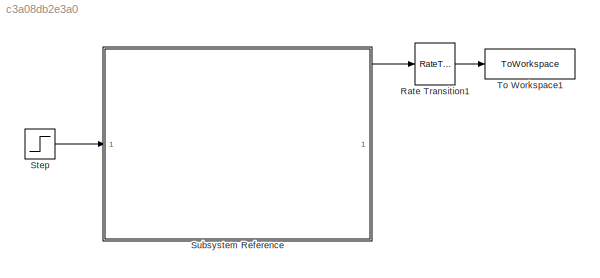
MODEL slx_c3a08db2e3a0
KIND model
CONFIG AbsTol = auto
CONFIG EnableMultiTasking = on
CONFIG FixedStep = 0.001
CONFIG MaxStep = auto
CONFIG MinStep = auto
CONFIG RelTol = 1e-3
CONFIG SampleTimeConstraint = Unconstrained
CONFIG SolverName = FixedStepAuto
CONFIG StartTime = 0.0
CONFIG StopTime = inf
BLOCK [RateTransition] Rate Transition1
  OutPortSampleTime = 0.004
  OutPortSampleTimeMultiple = 5
BLOCK [Step] Step
  After = 6
  SampleTime = 0.004
  Time = 2
BLOCK [SubSystem] Subsystem Reference
  ReferencedSubsystem = pololu_37D_hardware_interface
  Ts = 0.004
  pwmFreq = 2000
BLOCK [ToWorkspace] To Workspace1
  FixptAsFi = on
  MaxDataPoints = inf
  SampleTime = -1
  SaveFormat = Timeseries
  VariableName = speed_mean
LINE Rate Transition1:1 -> To Workspace1:1
LINE Step:1 -> Subsystem Reference:1
LINE Subsystem Reference:1 -> Rate Transition1:1
